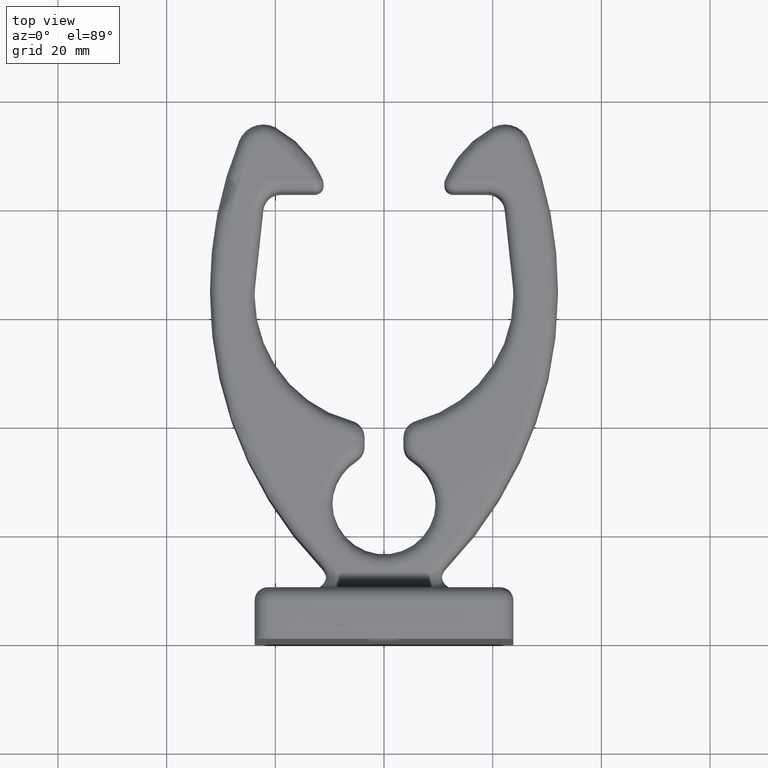
[diagram: clean part render]
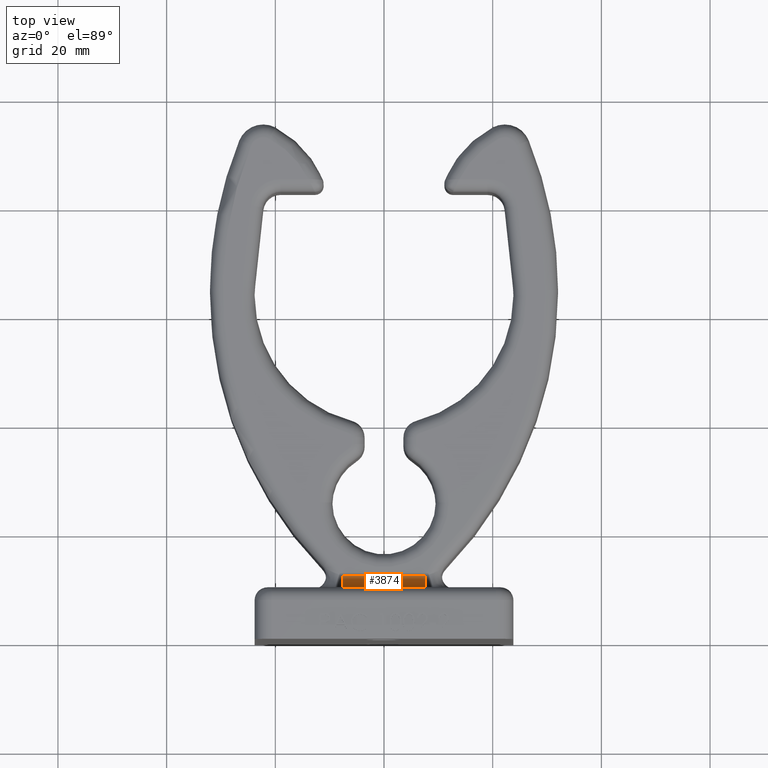
[diagram: same view with one face highlighted and labeled with its STEP entity id]
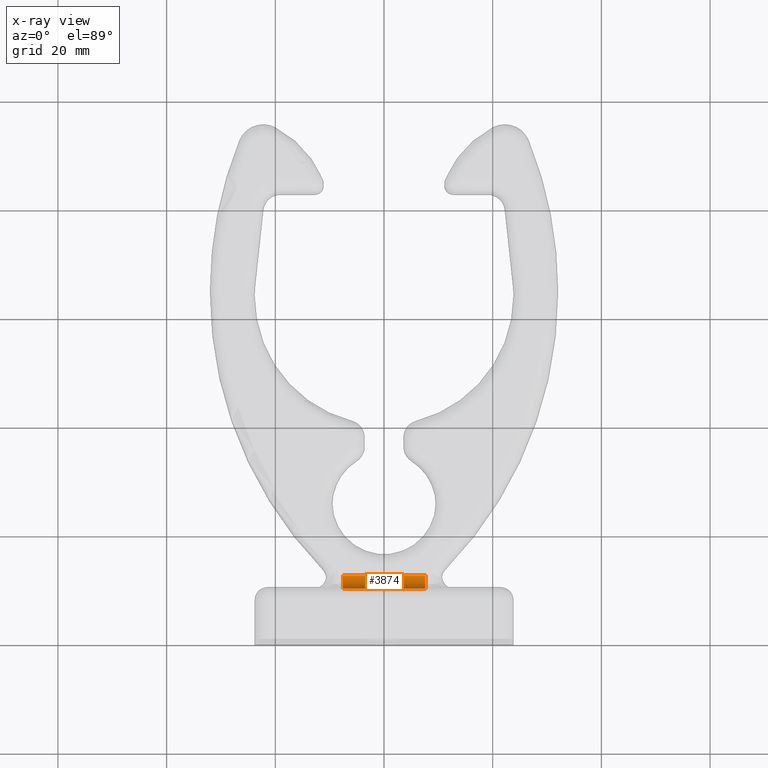
[diagram: x-ray of the same camera — body ghosted, the highlighted face saturated]
A machine part, top view. The second image highlights one B-rep face of the part: STEP entity #3874.
The next image is the same camera in x-ray: the body ghosted, the highlighted face saturated — about 0% of this face is hidden behind the body in this view.
In plain terms, the highlighted cylindrical surface (edge-blend (fillet) strip) has radius 2.3812 mm, axis along (-1, -0, 0).
Its self-contained STEP definition (entity closure, byte-faithful):
#417 = CARTESIAN_POINT ( 'NONE',  ( -0.2986596067394012300, 0.4687500000000000000, 0.7812500000000000000 ) ) ;
#536 = CARTESIAN_POINT ( 'NONE',  ( 0.2986596067393987300, 0.4687500000000001700, 0.6875000000000000000 ) ) ;
#588 = EDGE_LOOP ( 'NONE', ( #11762, #8614, #12177, #15553 ) ) ;
#1115 = AXIS2_PLACEMENT_3D ( 'NONE', #417, #9215, #1691 ) ;
#1133 = DIRECTION ( 'NONE',  ( -1.000000000000000000, -1.214154663850783700E-016, 0.0000000000000000000 ) ) ;
#1565 = CARTESIAN_POINT ( 'NONE',  ( 1.614275554149117800, 0.4687500000000002800, 0.6875000000000000000 ) ) ;
#1691 = DIRECTION ( 'NONE',  ( 7.284927983104698000E-016, 0.0000000000000000000, -1.000000000000000000 ) ) ;
#1793 = AXIS2_PLACEMENT_3D ( 'NONE', #11058, #3548, #12308 ) ;
#2184 = VERTEX_POINT ( 'NONE', #6308 ) ;
#2292 = CARTESIAN_POINT ( 'NONE',  ( -0.3750000000000000600, 0.4687500000000000000, 0.7812500000000000000 ) ) ;
#3358 = CARTESIAN_POINT ( 'NONE',  ( -0.2986596067394011200, 0.4687500000000000000, 0.6875000000000000000 ) ) ;
#3548 = DIRECTION ( 'NONE',  ( 1.000000000000000000, 0.0000000000000000000, -3.642463991552348500E-016 ) ) ;
#3814 = LINE ( 'NONE', #4782, #9707 ) ;
#3874 = ADVANCED_FACE ( 'NONE', ( #5532 ), #8473, .F. ) ;
#4782 = CARTESIAN_POINT ( 'NONE',  ( -0.3750000000000000600, 0.3750000000000000600, 0.7812500000000000000 ) ) ;
#5532 = FACE_OUTER_BOUND ( 'NONE', #588, .T. ) ;
#6080 = VERTEX_POINT ( 'NONE', #536 ) ;
#6308 = CARTESIAN_POINT ( 'NONE',  ( 0.2986596067393987300, 0.3750000000000001100, 0.7812500000000000000 ) ) ;
#6632 = CARTESIAN_POINT ( 'NONE',  ( -0.2986596067394012300, 0.3750000000000000600, 0.7812500000000000000 ) ) ;
#7904 = EDGE_CURVE ( 'NONE', #14429, #6080, #15506, .T. ) ;
#8473 = CYLINDRICAL_SURFACE ( 'NONE', #8870, 0.09374999999999998600 ) ;
#8614 = ORIENTED_EDGE ( 'NONE', *, *, #7904, .F. ) ;
#8670 = DIRECTION ( 'NONE',  ( 0.0000000000000000000, -1.000000000000000000, 0.0000000000000000000 ) ) ;
#8805 = VECTOR ( 'NONE', #10331, 39.37007874015748100 ) ;
#8870 = AXIS2_PLACEMENT_3D ( 'NONE', #2292, #1133, #8670 ) ;
#9099 = CIRCLE ( 'NONE', #1793, 0.09375000000000005600 ) ;
#9215 = DIRECTION ( 'NONE',  ( 1.000000000000000000, 0.0000000000000000000, 7.284927983104697000E-016 ) ) ;
#9707 = VECTOR ( 'NONE', #12282, 39.37007874015748100 ) ;
#10331 = DIRECTION ( 'NONE',  ( 1.000000000000000000, 1.214154663850783700E-016, -0.0000000000000000000 ) ) ;
#11058 = CARTESIAN_POINT ( 'NONE',  ( 0.2986596067393987300, 0.4687500000000001100, 0.7812500000000000000 ) ) ;
#11540 = CIRCLE ( 'NONE', #1115, 0.09375000000000005600 ) ;
#11762 = ORIENTED_EDGE ( 'NONE', *, *, #14849, .T. ) ;
#11916 = EDGE_CURVE ( 'NONE', #12985, #14429, #11540, .T. ) ;
#12177 = ORIENTED_EDGE ( 'NONE', *, *, #11916, .F. ) ;
#12282 = DIRECTION ( 'NONE',  ( -1.000000000000000000, -1.214154663850783700E-016, 0.0000000000000000000 ) ) ;
#12308 = DIRECTION ( 'NONE',  ( -3.642463991552349000E-016, 0.0000000000000000000, -1.000000000000000000 ) ) ;
#12985 = VERTEX_POINT ( 'NONE', #6632 ) ;
#13537 = EDGE_CURVE ( 'NONE', #2184, #12985, #3814, .T. ) ;
#14429 = VERTEX_POINT ( 'NONE', #3358 ) ;
#14849 = EDGE_CURVE ( 'NONE', #2184, #6080, #9099, .T. ) ;
#15506 = LINE ( 'NONE', #1565, #8805 ) ;
#15553 = ORIENTED_EDGE ( 'NONE', *, *, #13537, .F. ) ;